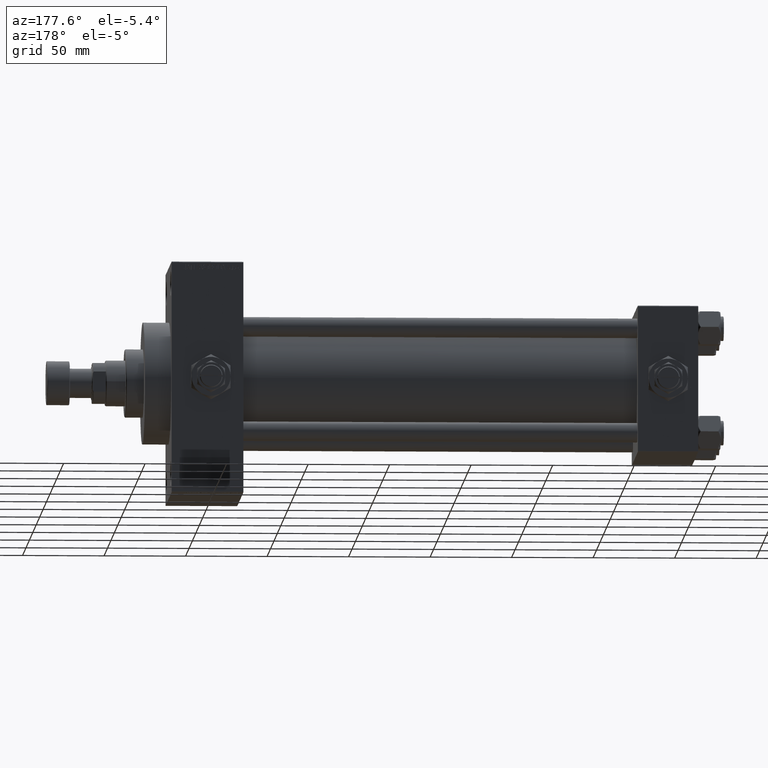
[diagram: clean part render]
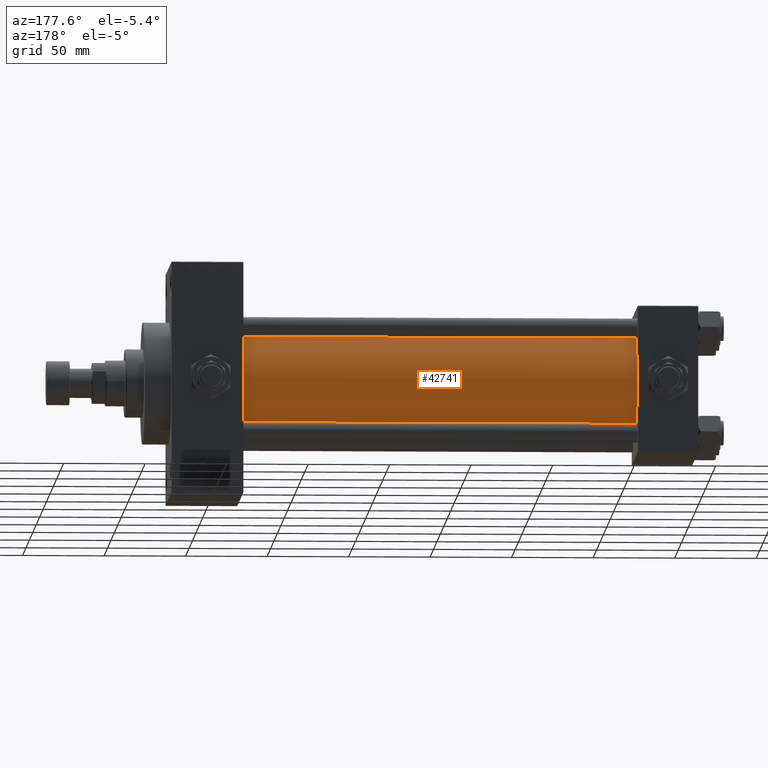
[diagram: same view with one face highlighted and labeled with its STEP entity id]
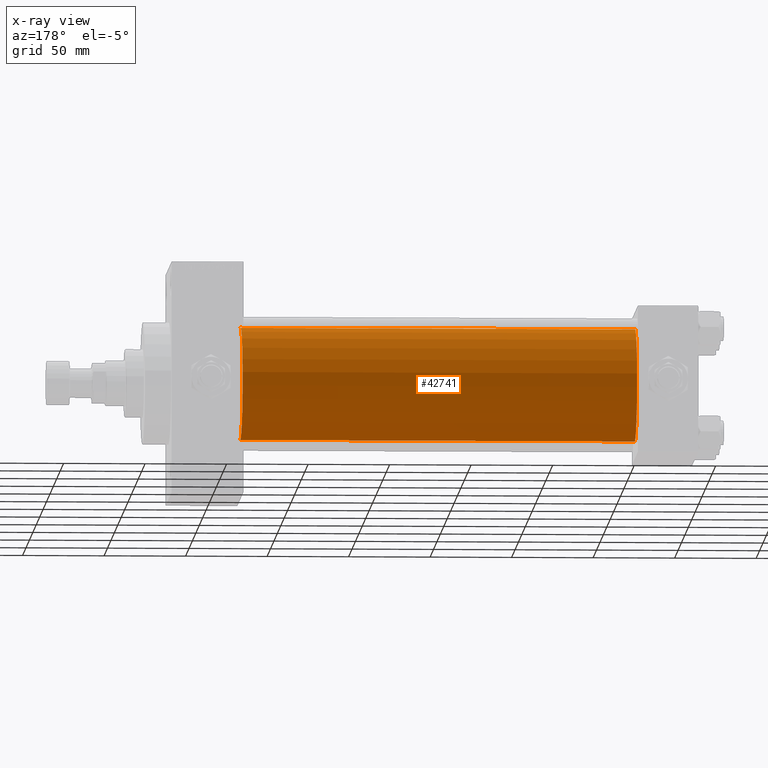
[diagram: x-ray of the same camera — body ghosted, the highlighted face saturated]
A machine part, auxiliary view. The second image highlights one B-rep face of the part: STEP entity #42741.
The next image is the same camera in x-ray: the body ghosted, the highlighted face saturated — about 0% of this face is hidden behind the body in this view.
In plain terms, the highlighted cylindrical surface (partial cylindrical patch) has radius 34.5 mm, axis along (-1, -0, -0).
Its self-contained STEP definition (entity closure, byte-faithful):
#189 = CARTESIAN_POINT ( 'NONE',  ( 37.00000000000000711, -2.602085213965210642E-15, 0.000000000000000000 ) ) ;
#1510 = AXIS2_PLACEMENT_3D ( 'NONE', #44316, #32724, #21622 ) ;
#3917 = EDGE_LOOP ( 'NONE', ( #43343, #25447, #30611, #32973 ) ) ;
#5845 = LINE ( 'NONE', #21168, #15231 ) ;
#9177 = CARTESIAN_POINT ( 'NONE',  ( 37.00000000000000711, 1.622946243093158675E-15, -34.50000000000000000 ) ) ;
#10178 = EDGE_CURVE ( 'NONE', #39323, #38909, #5845, .T. ) ;
#11096 = AXIS2_PLACEMENT_3D ( 'NONE', #189, #19282, #23041 ) ;
#11464 = VERTEX_POINT ( 'NONE', #18810 ) ;
#14836 = CARTESIAN_POINT ( 'NONE',  ( 278.9999999999999432, 1.622946243093158675E-15, -34.50000000000000000 ) ) ;
#15231 = VECTOR ( 'NONE', #48106, 1000.000000000000000 ) ;
#15508 = CARTESIAN_POINT ( 'NONE',  ( 278.9999999999999432, -2.602085213965210642E-15, 34.50000000000000000 ) ) ;
#16361 = LINE ( 'NONE', #31705, #28902 ) ;
#16988 = AXIS2_PLACEMENT_3D ( 'NONE', #36674, #37416, #25559 ) ;
#18398 = EDGE_CURVE ( 'NONE', #37449, #11464, #16361, .T. ) ;
#18810 = CARTESIAN_POINT ( 'NONE',  ( 37.00000000000000711, -2.602085213965210642E-15, 34.50000000000000000 ) ) ;
#19282 = DIRECTION ( 'NONE',  ( 1.000000000000000000, -0.000000000000000000, 0.000000000000000000 ) ) ;
#21168 = CARTESIAN_POINT ( 'NONE',  ( 278.9999999999999432, 1.622946243093158675E-15, -34.50000000000000000 ) ) ;
#21622 = DIRECTION ( 'NONE',  ( 0.000000000000000000, 0.000000000000000000, 1.000000000000000000 ) ) ;
#23041 = DIRECTION ( 'NONE',  ( 0.000000000000000000, 0.000000000000000000, 1.000000000000000000 ) ) ;
#25447 = ORIENTED_EDGE ( 'NONE', *, *, #10178, .T. ) ;
#25559 = DIRECTION ( 'NONE',  ( 0.000000000000000000, 0.000000000000000000, -1.000000000000000000 ) ) ;
#28444 = FACE_OUTER_BOUND ( 'NONE', #3917, .T. ) ;
#28902 = VECTOR ( 'NONE', #35743, 1000.000000000000000 ) ;
#28935 = CYLINDRICAL_SURFACE ( 'NONE', #1510, 34.50000000000000000 ) ;
#30611 = ORIENTED_EDGE ( 'NONE', *, *, #43202, .T. ) ;
#31705 = CARTESIAN_POINT ( 'NONE',  ( 278.9999999999999432, -2.602085213965210642E-15, 34.50000000000000000 ) ) ;
#32724 = DIRECTION ( 'NONE',  ( -1.000000000000000000, -0.000000000000000000, -0.000000000000000000 ) ) ;
#32973 = ORIENTED_EDGE ( 'NONE', *, *, #18398, .F. ) ;
#34413 = CIRCLE ( 'NONE', #11096, 34.50000000000000000 ) ;
#35743 = DIRECTION ( 'NONE',  ( -1.000000000000000000, -0.000000000000000000, -0.000000000000000000 ) ) ;
#36674 = CARTESIAN_POINT ( 'NONE',  ( 278.9999999999999432, -2.602085213965210642E-15, 0.000000000000000000 ) ) ;
#37416 = DIRECTION ( 'NONE',  ( 1.000000000000000000, 0.000000000000000000, 0.000000000000000000 ) ) ;
#37449 = VERTEX_POINT ( 'NONE', #15508 ) ;
#38677 = CIRCLE ( 'NONE', #16988, 34.50000000000000000 ) ;
#38909 = VERTEX_POINT ( 'NONE', #9177 ) ;
#39323 = VERTEX_POINT ( 'NONE', #14836 ) ;
#42741 = ADVANCED_FACE ( 'NONE', ( #28444 ), #28935, .T. ) ;
#43202 = EDGE_CURVE ( 'NONE', #38909, #11464, #34413, .T. ) ;
#43343 = ORIENTED_EDGE ( 'NONE', *, *, #49107, .F. ) ;
#44316 = CARTESIAN_POINT ( 'NONE',  ( 278.9999999999999432, -2.602085213965210642E-15, 0.000000000000000000 ) ) ;
#48106 = DIRECTION ( 'NONE',  ( -1.000000000000000000, -0.000000000000000000, -0.000000000000000000 ) ) ;
#49107 = EDGE_CURVE ( 'NONE', #39323, #37449, #38677, .T. ) ;